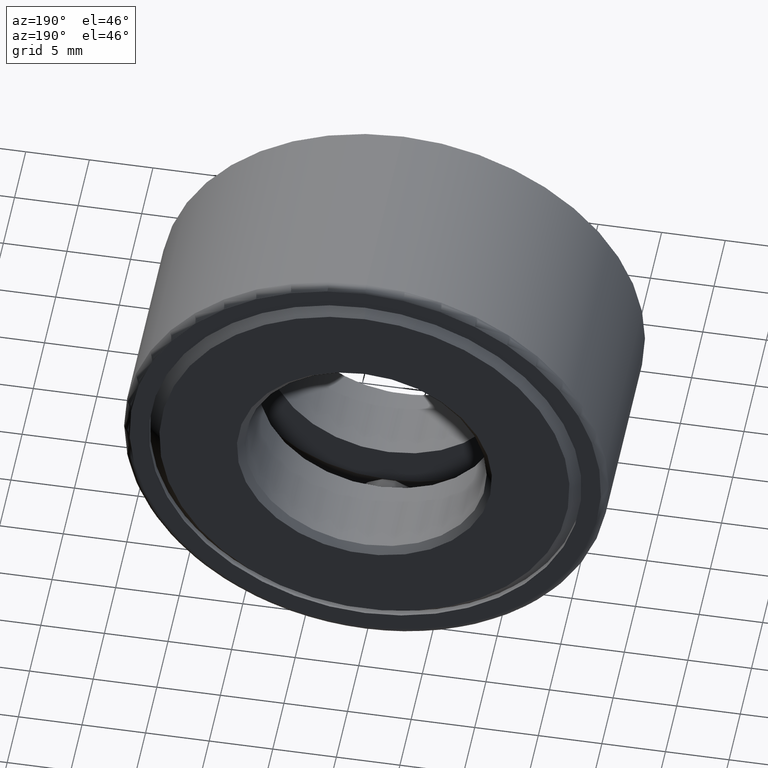
[diagram: clean part render]
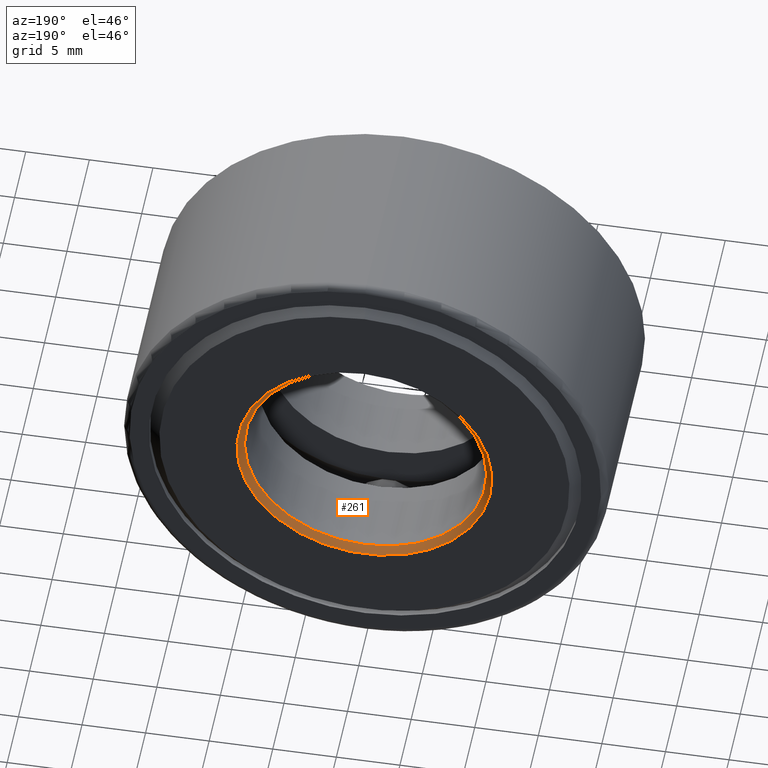
[diagram: same view with one face highlighted and labeled with its STEP entity id]
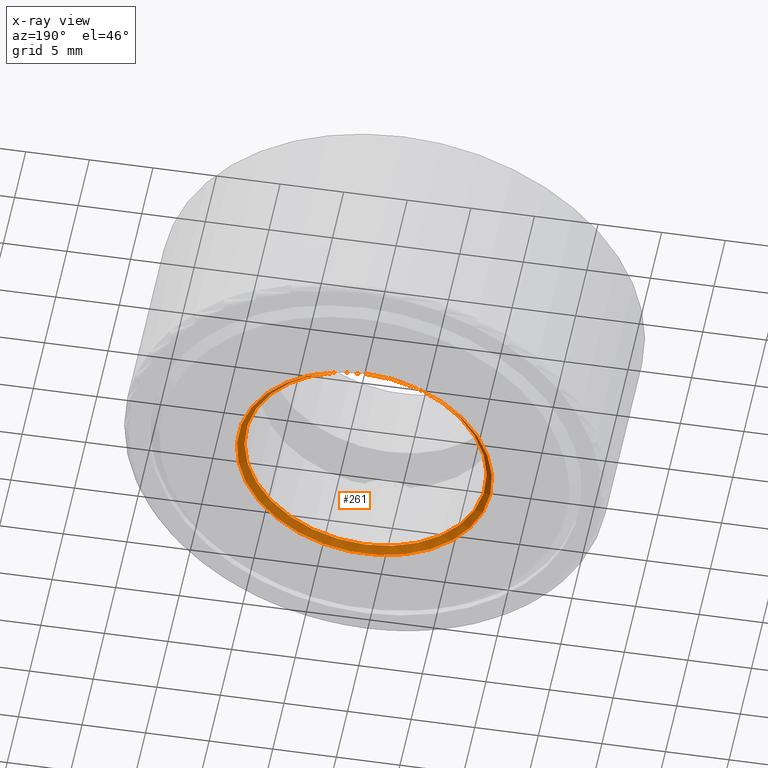
[diagram: x-ray of the same camera — body ghosted, the highlighted face saturated]
A machine part, auxiliary view. The second image highlights one B-rep face of the part: STEP entity #261.
The next image is the same camera in x-ray: the body ghosted, the highlighted face saturated — about 0% of this face is hidden behind the body in this view.
In plain terms, the highlighted conical surface has half-angle 45 deg.
Its self-contained STEP definition (entity closure, byte-faithful):
#31 = DIRECTION ( 'NONE',  ( 0.0000000000000000000, 0.0000000000000000000, 1.000000000000000000 ) ) ;
#42 = EDGE_LOOP ( 'NONE', ( #163 ) ) ;
#60 = CIRCLE ( 'NONE', #582, 0.3950000000000001800 ) ;
#74 = CARTESIAN_POINT ( 'NONE',  ( 0.0000000000000000000, 0.6875000000000000000, 0.0000000000000000000 ) ) ;
#91 = DIRECTION ( 'NONE',  ( -0.0000000000000000000, 1.000000000000000000, -0.0000000000000000000 ) ) ;
#112 = CIRCLE ( 'NONE', #376, 0.3750000000000001100 ) ;
#118 = DIRECTION ( 'NONE',  ( -0.0000000000000000000, 1.000000000000000000, -0.0000000000000000000 ) ) ;
#119 = CARTESIAN_POINT ( 'NONE',  ( 0.0000000000000000000, 0.6674999999999998700, 0.3750000000000001100 ) ) ;
#138 = CARTESIAN_POINT ( 'NONE',  ( 0.0000000000000000000, 0.6674999999999998700, 0.0000000000000000000 ) ) ;
#163 = ORIENTED_EDGE ( 'NONE', *, *, #562, .T. ) ;
#165 = VERTEX_POINT ( 'NONE', #119 ) ;
#239 = EDGE_CURVE ( 'NONE', #165, #165, #112, .T. ) ;
#253 = FACE_OUTER_BOUND ( 'NONE', #42, .T. ) ;
#256 = DIRECTION ( 'NONE',  ( 0.0000000000000000000, 0.0000000000000000000, 1.000000000000000000 ) ) ;
#261 = ADVANCED_FACE ( 'NONE', ( #253, #467 ), #341, .F. ) ;
#341 = CONICAL_SURFACE ( 'NONE', #404, 0.3750000000000001100, 0.7853981633974482800 ) ;
#376 = AXIS2_PLACEMENT_3D ( 'NONE', #138, #462, #256 ) ;
#404 = AXIS2_PLACEMENT_3D ( 'NONE', #595, #91, #468 ) ;
#409 = EDGE_LOOP ( 'NONE', ( #466 ) ) ;
#450 = CARTESIAN_POINT ( 'NONE',  ( 0.0000000000000000000, 0.6875000000000000000, 0.3950000000000001800 ) ) ;
#456 = VERTEX_POINT ( 'NONE', #450 ) ;
#462 = DIRECTION ( 'NONE',  ( -0.0000000000000000000, 1.000000000000000000, -0.0000000000000000000 ) ) ;
#466 = ORIENTED_EDGE ( 'NONE', *, *, #239, .F. ) ;
#467 = FACE_BOUND ( 'NONE', #409, .T. ) ;
#468 = DIRECTION ( 'NONE',  ( 0.0000000000000000000, 0.0000000000000000000, 1.000000000000000000 ) ) ;
#562 = EDGE_CURVE ( 'NONE', #456, #456, #60, .T. ) ;
#582 = AXIS2_PLACEMENT_3D ( 'NONE', #74, #118, #31 ) ;
#595 = CARTESIAN_POINT ( 'NONE',  ( 0.0000000000000000000, 0.6674999999999998700, 0.0000000000000000000 ) ) ;